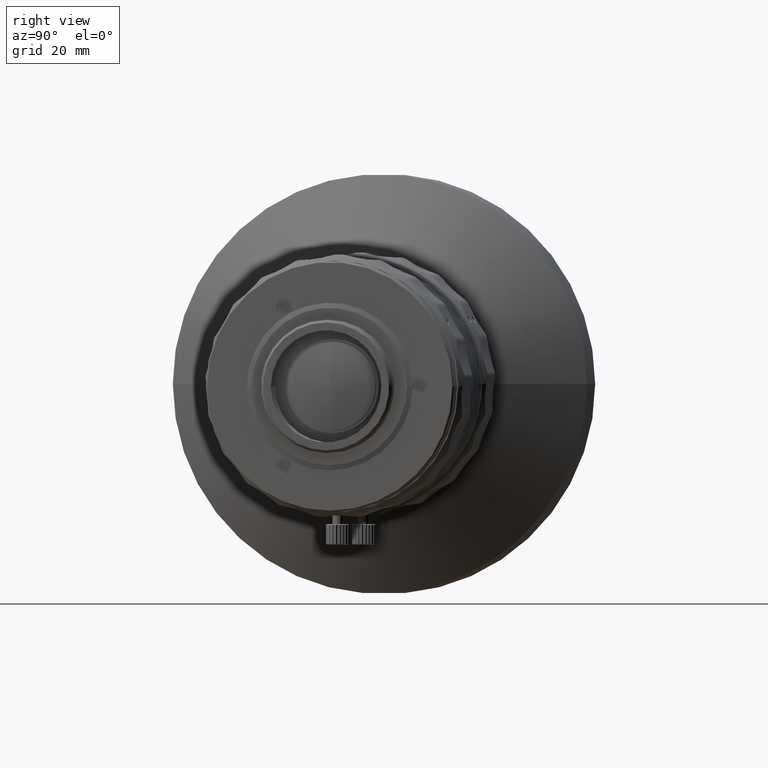
[diagram: clean part render]
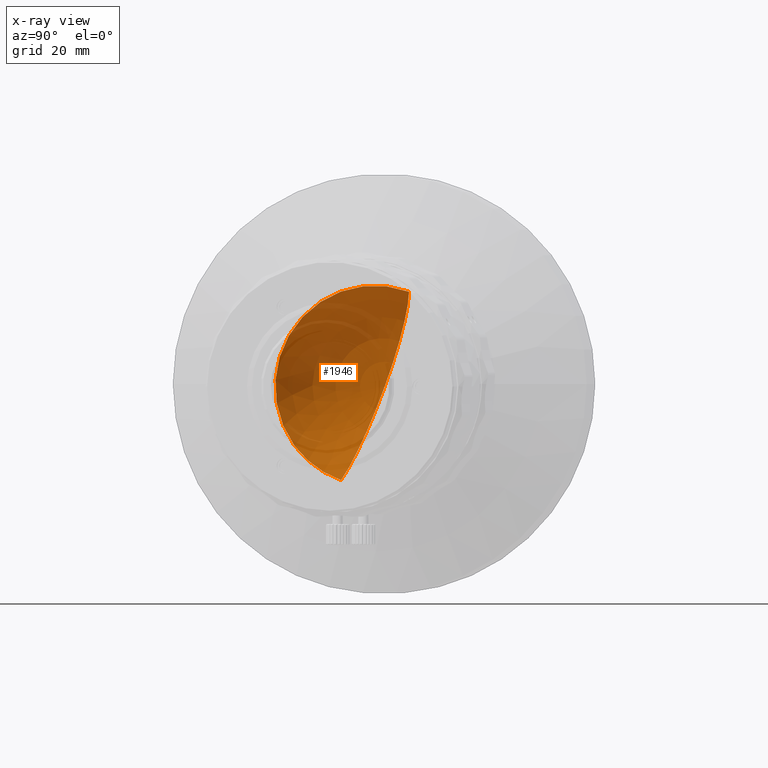
[diagram: x-ray — body ghosted, one internal face saturated and labeled with its STEP entity id]
A machine part, right view, then the same camera in x-ray: the body is ghosted and one INTERNAL B-rep face — a face not visible from any outside direction — is saturated and labeled: STEP entity #1946.
In plain terms, the highlighted spherical surface has radius 21.5313 mm.
Its self-contained STEP definition (entity closure, byte-faithful):
#127 = CARTESIAN_POINT ( 'NONE',  ( 117.0071164484521944, -28.22957083986204907, -18.76329369249004841 ) ) ;
#1787 = CARTESIAN_POINT ( 'NONE',  ( 115.5801734780587253, -35.10243368968705369, -36.49788689875213521 ) ) ;
#1946 = ADVANCED_FACE ( 'NONE', ( #31039 ), #58088, .F. ) ;
#2388 = CARTESIAN_POINT ( 'NONE',  ( 114.6330977723703057, -42.33793038026140465, -31.57943836621746669 ) ) ;
#3745 = DIRECTION ( 'NONE',  ( 0.05556133997111251110, 0.3401572221517865091, 0.9387257329585647625 ) ) ;
#3816 = CIRCLE ( 'NONE', #41869, 21.53130400000000577 ) ;
#6262 = CARTESIAN_POINT ( 'NONE',  ( 114.7867948638899236, -41.01205073494979558, -32.88452739626949040 ) ) ;
#6610 = CIRCLE ( 'NONE', #8542, 19.21969464673000161 ) ;
#8166 = EDGE_CURVE ( 'NONE', #51383, #43219, #3816, .T. ) ;
#8419 = EDGE_LOOP ( 'NONE', ( #12042, #13123, #14039 ) ) ;
#8542 = AXIS2_PLACEMENT_3D ( 'NONE', #127, #44538, #3745 ) ;
#10123 = DIRECTION ( 'NONE',  ( -0.1513262201651049688, -0.9264482591106408815, 0.3446650523064459515 ) ) ;
#11334 = CARTESIAN_POINT ( 'NONE',  ( 114.5667045262106285, -42.95041839223433300, -30.88408772020626358 ) ) ;
#12042 = ORIENTED_EDGE ( 'NONE', *, *, #20254, .T. ) ;
#13123 = ORIENTED_EDGE ( 'NONE', *, *, #15918, .T. ) ;
#14039 = ORIENTED_EDGE ( 'NONE', *, *, #8166, .F. ) ;
#15918 = EDGE_CURVE ( 'NONE', #21478, #43219, #56817, .T. ) ;
#16099 = CARTESIAN_POINT ( 'NONE',  ( 115.3389166001317108, -36.79816597443036130, -35.74161229495119585 ) ) ;
#17891 = DIRECTION ( 'NONE',  ( -0.05556133997111246947, -0.3401572221517864536, -0.9387257329585647625 ) ) ;
#19359 = CARTESIAN_POINT ( 'NONE',  ( 126.5858655080979958, -29.79416538127525271, -18.76329369249004841 ) ) ;
#20254 = EDGE_CURVE ( 'NONE', #51383, #21478, #6610, .T. ) ;
#20580 = CARTESIAN_POINT ( 'NONE',  ( 114.5106971145185639, -43.51313071077956351, -30.14649844751329866 ) ) ;
#21478 = VERTEX_POINT ( 'NONE', #35993 ) ;
#24470 = CARTESIAN_POINT ( 'NONE',  ( 115.3971085931614056, -36.38296592655520101, -35.94512485676380464 ) ) ;
#26272 = CARTESIAN_POINT ( 'NONE',  ( 126.5858655080979958, -29.79416538127525271, -18.76329369249004841 ) ) ;
#29524 = CARTESIAN_POINT ( 'NONE',  ( 115.1704923460172552, -38.01883129048736976, -35.08829650679430046 ) ) ;
#31039 = FACE_OUTER_BOUND ( 'NONE', #8419, .T. ) ;
#31691 = AXIS2_PLACEMENT_3D ( 'NONE', #26272, #53320, #17891 ) ;
#35993 = CARTESIAN_POINT ( 'NONE',  ( 114.5106971145185639, -43.51313071077956351, -30.14649844751329866 ) ) ;
#37624 = CARTESIAN_POINT ( 'NONE',  ( 115.6443543773881260, -34.66376363671961514, -36.65651584356002246 ) ) ;
#38739 = CARTESIAN_POINT ( 'NONE',  ( 114.8747498263646349, -40.29400701152981412, -33.49658475139501945 ) ) ;
#41869 = AXIS2_PLACEMENT_3D ( 'NONE', #19359, #10123, #42272 ) ;
#42272 = DIRECTION ( 'NONE',  ( -0.3952792209536100665, 0.3763038449994530743, 0.8379437652497537803 ) ) ;
#43219 = VERTEX_POINT ( 'NONE', #37624 ) ;
#44538 = DIRECTION ( 'NONE',  ( 0.9869211278471835547, -0.1612038690876969049, -9.617611747084424409E-18 ) ) ;
#47955 = CARTESIAN_POINT ( 'NONE',  ( 115.6443543773881260, -34.66376363671961514, -36.65651584356002246 ) ) ;
#51383 = VERTEX_POINT ( 'NONE', #57395 ) ;
#53320 = DIRECTION ( 'NONE',  ( 0.9869211278471834436, -0.1612038690876969882, 1.409931364565476990E-16 ) ) ;
#56571 = CARTESIAN_POINT ( 'NONE',  ( 115.5176595908439339, -35.53562412534340353, -36.32308769321959829 ) ) ;
#56817 = B_SPLINE_CURVE_WITH_KNOTS ( 'NONE', 3,
 ( #20580, #11334, #2388, #6262, #38739, #56869, #29524, #16099, #24470, #56571, #1787, #47955 ),
 .UNSPECIFIED., .F., .F.,
 ( 4, 2, 2, 2, 2, 4 ),
 ( 0.009023042909973987002, 0.01180893365094912856, 0.01459482439192427185, 0.01738071513289941167, 0.01877366050338697551, 0.02016660587387453935 ),
 .UNSPECIFIED. ) ;
#56869 = CARTESIAN_POINT ( 'NONE',  ( 115.0663799666757683, -38.79948733586503806, -34.59593085604952734 ) ) ;
#57395 = CARTESIAN_POINT ( 'NONE',  ( 118.0749884368601954, -21.69185289822480200, -0.7212717479985750746 ) ) ;
#58088 = SPHERICAL_SURFACE ( 'NONE', #31691, 21.53130400000000222 ) ;